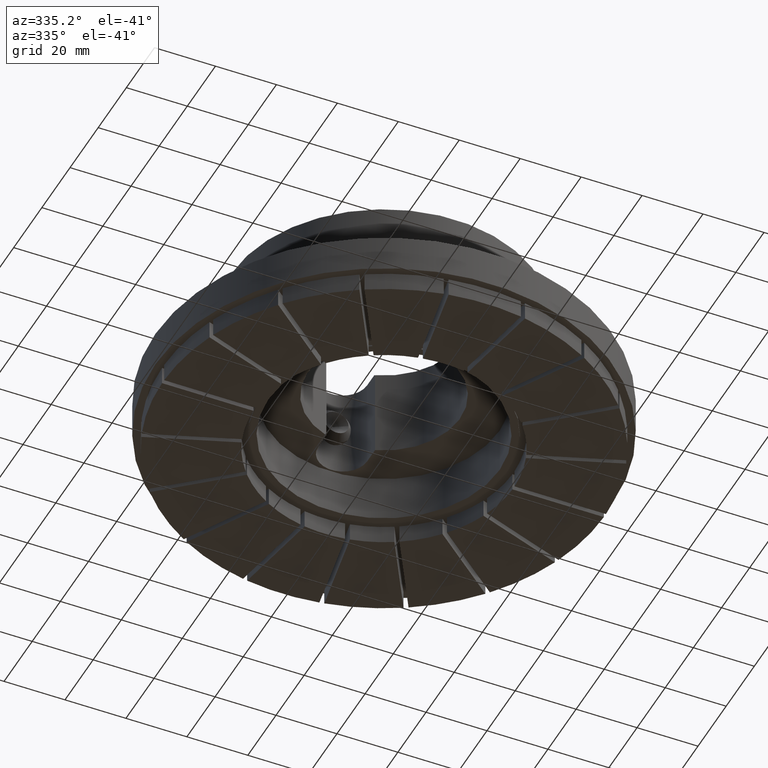
[diagram: clean part render]
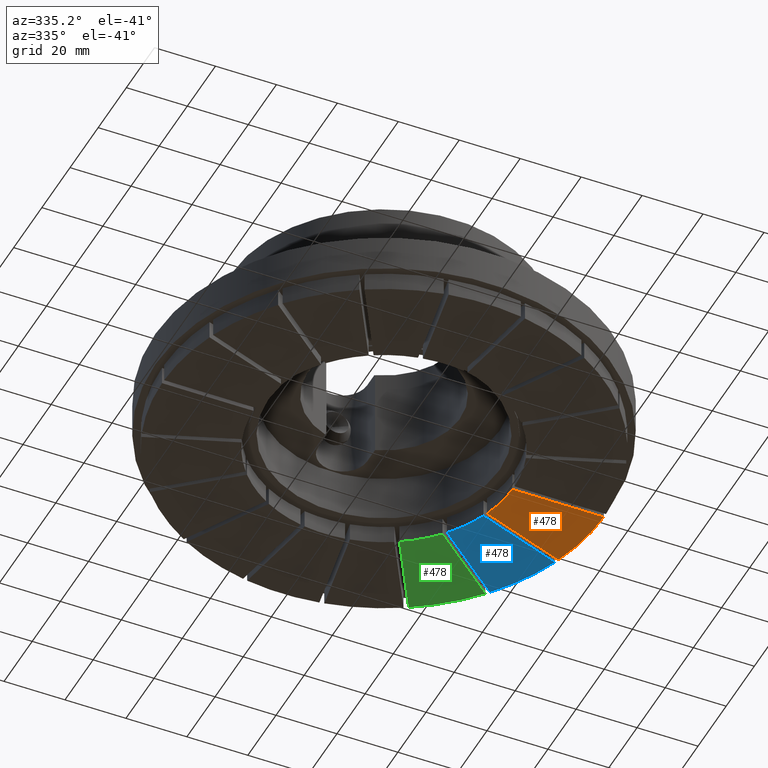
[diagram: same view with three faces highlighted in distinct colors, each labeled with its STEP entity id]
A machine part, auxiliary view with three faces highlighted in distinct colors.
Their STEP definitions:

[orange] entity #478 — the highlighted planar face has unit normal (0, 0, 1).
#478 = ADVANCED_FACE( '', ( #750 ), #751, .F. );
#750 = FACE_OUTER_BOUND( '', #1022, .T. );
#751 = PLANE( '', #1023 );
#1022 = EDGE_LOOP( '', ( #1898, #1899, #1900, #1901 ) );
#1023 = AXIS2_PLACEMENT_3D( '', #1902, #1903, #1904 );
#1898 = ORIENTED_EDGE( '', *, *, #2172, .F. );
#1899 = ORIENTED_EDGE( '', *, *, #2183, .F. );
#1900 = ORIENTED_EDGE( '', *, *, #2181, .F. );
#1901 = ORIENTED_EDGE( '', *, *, #2179, .F. );
#1902 = CARTESIAN_POINT( '', ( 1.38777878078145E-014, 1.08420217248550E-016, 0.000000000000000 ) );
#1903 = DIRECTION( '', ( 0.000000000000000, -0.000000000000000, 1.00000000000000 ) );
#1904 = DIRECTION( '', ( 0.999946490839491, 0.0103448275862069, 0.000000000000000 ) );
#2172 = EDGE_CURVE( '', #2633, #2634, #2635, .T. );
#2179 = EDGE_CURVE( '', #2634, #2646, #2647, .T. );
#2181 = EDGE_CURVE( '', #2646, #2649, #2650, .T. );
#2183 = EDGE_CURVE( '', #2649, #2633, #2652, .T. );
#2633 = VERTEX_POINT( '', #3466 );
#2634 = VERTEX_POINT( '', #3467 );
#2635 = LINE( '', #3468, #3469 );
#2646 = VERTEX_POINT( '', #3484 );
#2647 = CIRCLE( '', #3485, 72.5000000000000 );
#2649 = VERTEX_POINT( '', #3488 );
#2650 = LINE( '', #3489, #3490 );
#2652 = CIRCLE( '', #3493, 42.5000000000000 );
#3466 = CARTESIAN_POINT( '', ( 42.4933818376462, 0.750000000000040, 0.000000000000000 ) );
#3467 = CARTESIAN_POINT( '', ( 72.4961205858631, 0.750000000000000, 0.000000000000000 ) );
#3468 = CARTESIAN_POINT( '', ( 42.4933818376462, 0.750000000000000, 0.000000000000000 ) );
#3469 = VECTOR( '', #3934, 1000.00000000000 );
#3484 = CARTESIAN_POINT( '', ( 68.3805846576352, 24.0903640877424, 0.000000000000000 ) );
#3485 = AXIS2_PLACEMENT_3D( '', #3945, #3946, #3947 );
#3488 = CARTESIAN_POINT( '', ( 40.1872324525683, 13.8288230809147, 0.000000000000000 ) );
#3489 = CARTESIAN_POINT( '', ( 68.3805846576352, 24.0903640877424, 0.000000000000000 ) );
#3490 = VECTOR( '', #3949, 1000.00000000000 );
#3493 = AXIS2_PLACEMENT_3D( '', #3951, #3952, #3953 );
#3934 = DIRECTION( '', ( 1.00000000000000, 0.000000000000000, 0.000000000000000 ) );
#3945 = CARTESIAN_POINT( '', ( 1.38777878078145E-014, 1.08420217248550E-016, 0.000000000000000 ) );
#3946 = DIRECTION( '', ( 0.000000000000000, 0.000000000000000, 1.00000000000000 ) );
#3947 = DIRECTION( '', ( 1.00000000000000, 0.000000000000000, 0.000000000000000 ) );
#3949 = DIRECTION( '', ( -0.939692620785908, -0.342020143325669, -0.000000000000000 ) );
#3951 = CARTESIAN_POINT( '', ( 1.38777878078145E-014, 1.08420217248550E-016, 0.000000000000000 ) );
#3952 = DIRECTION( '', ( 0.000000000000000, 0.000000000000000, -1.00000000000000 ) );
#3953 = DIRECTION( '', ( 1.00000000000000, 0.000000000000000, 0.000000000000000 ) );

[blue] entity #478 — the highlighted planar face has unit normal (0, 0, 1).
#478 = ADVANCED_FACE( '', ( #750 ), #751, .F. );
#750 = FACE_OUTER_BOUND( '', #1022, .T. );
#751 = PLANE( '', #1023 );
#1022 = EDGE_LOOP( '', ( #1898, #1899, #1900, #1901 ) );
#1023 = AXIS2_PLACEMENT_3D( '', #1902, #1903, #1904 );
#1898 = ORIENTED_EDGE( '', *, *, #2172, .F. );
#1899 = ORIENTED_EDGE( '', *, *, #2183, .F. );
#1900 = ORIENTED_EDGE( '', *, *, #2181, .F. );
#1901 = ORIENTED_EDGE( '', *, *, #2179, .F. );
#1902 = CARTESIAN_POINT( '', ( 1.38777878078145E-014, 1.08420217248550E-016, 0.000000000000000 ) );
#1903 = DIRECTION( '', ( 0.000000000000000, -0.000000000000000, 1.00000000000000 ) );
#1904 = DIRECTION( '', ( 0.999946490839491, 0.0103448275862069, 0.000000000000000 ) );
#2172 = EDGE_CURVE( '', #2633, #2634, #2635, .T. );
#2179 = EDGE_CURVE( '', #2634, #2646, #2647, .T. );
#2181 = EDGE_CURVE( '', #2646, #2649, #2650, .T. );
#2183 = EDGE_CURVE( '', #2649, #2633, #2652, .T. );
#2633 = VERTEX_POINT( '', #3466 );
#2634 = VERTEX_POINT( '', #3467 );
#2635 = LINE( '', #3468, #3469 );
#2646 = VERTEX_POINT( '', #3484 );
#2647 = CIRCLE( '', #3485, 72.5000000000000 );
#2649 = VERTEX_POINT( '', #3488 );
#2650 = LINE( '', #3489, #3490 );
#2652 = CIRCLE( '', #3493, 42.5000000000000 );
#3466 = CARTESIAN_POINT( '', ( 42.4933818376462, 0.750000000000040, 0.000000000000000 ) );
#3467 = CARTESIAN_POINT( '', ( 72.4961205858631, 0.750000000000000, 0.000000000000000 ) );
#3468 = CARTESIAN_POINT( '', ( 42.4933818376462, 0.750000000000000, 0.000000000000000 ) );
#3469 = VECTOR( '', #3934, 1000.00000000000 );
#3484 = CARTESIAN_POINT( '', ( 68.3805846576352, 24.0903640877424, 0.000000000000000 ) );
#3485 = AXIS2_PLACEMENT_3D( '', #3945, #3946, #3947 );
#3488 = CARTESIAN_POINT( '', ( 40.1872324525683, 13.8288230809147, 0.000000000000000 ) );
#3489 = CARTESIAN_POINT( '', ( 68.3805846576352, 24.0903640877424, 0.000000000000000 ) );
#3490 = VECTOR( '', #3949, 1000.00000000000 );
#3493 = AXIS2_PLACEMENT_3D( '', #3951, #3952, #3953 );
#3934 = DIRECTION( '', ( 1.00000000000000, 0.000000000000000, 0.000000000000000 ) );
#3945 = CARTESIAN_POINT( '', ( 1.38777878078145E-014, 1.08420217248550E-016, 0.000000000000000 ) );
#3946 = DIRECTION( '', ( 0.000000000000000, 0.000000000000000, 1.00000000000000 ) );
#3947 = DIRECTION( '', ( 1.00000000000000, 0.000000000000000, 0.000000000000000 ) );
#3949 = DIRECTION( '', ( -0.939692620785908, -0.342020143325669, -0.000000000000000 ) );
#3951 = CARTESIAN_POINT( '', ( 1.38777878078145E-014, 1.08420217248550E-016, 0.000000000000000 ) );
#3952 = DIRECTION( '', ( 0.000000000000000, 0.000000000000000, -1.00000000000000 ) );
#3953 = DIRECTION( '', ( 1.00000000000000, 0.000000000000000, 0.000000000000000 ) );

[green] entity #478 — the highlighted planar face has unit normal (0, 0, 1).
#478 = ADVANCED_FACE( '', ( #750 ), #751, .F. );
#750 = FACE_OUTER_BOUND( '', #1022, .T. );
#751 = PLANE( '', #1023 );
#1022 = EDGE_LOOP( '', ( #1898, #1899, #1900, #1901 ) );
#1023 = AXIS2_PLACEMENT_3D( '', #1902, #1903, #1904 );
#1898 = ORIENTED_EDGE( '', *, *, #2172, .F. );
#1899 = ORIENTED_EDGE( '', *, *, #2183, .F. );
#1900 = ORIENTED_EDGE( '', *, *, #2181, .F. );
#1901 = ORIENTED_EDGE( '', *, *, #2179, .F. );
#1902 = CARTESIAN_POINT( '', ( 1.38777878078145E-014, 1.08420217248550E-016, 0.000000000000000 ) );
#1903 = DIRECTION( '', ( 0.000000000000000, -0.000000000000000, 1.00000000000000 ) );
#1904 = DIRECTION( '', ( 0.999946490839491, 0.0103448275862069, 0.000000000000000 ) );
#2172 = EDGE_CURVE( '', #2633, #2634, #2635, .T. );
#2179 = EDGE_CURVE( '', #2634, #2646, #2647, .T. );
#2181 = EDGE_CURVE( '', #2646, #2649, #2650, .T. );
#2183 = EDGE_CURVE( '', #2649, #2633, #2652, .T. );
#2633 = VERTEX_POINT( '', #3466 );
#2634 = VERTEX_POINT( '', #3467 );
#2635 = LINE( '', #3468, #3469 );
#2646 = VERTEX_POINT( '', #3484 );
#2647 = CIRCLE( '', #3485, 72.5000000000000 );
#2649 = VERTEX_POINT( '', #3488 );
#2650 = LINE( '', #3489, #3490 );
#2652 = CIRCLE( '', #3493, 42.5000000000000 );
#3466 = CARTESIAN_POINT( '', ( 42.4933818376462, 0.750000000000040, 0.000000000000000 ) );
#3467 = CARTESIAN_POINT( '', ( 72.4961205858631, 0.750000000000000, 0.000000000000000 ) );
#3468 = CARTESIAN_POINT( '', ( 42.4933818376462, 0.750000000000000, 0.000000000000000 ) );
#3469 = VECTOR( '', #3934, 1000.00000000000 );
#3484 = CARTESIAN_POINT( '', ( 68.3805846576352, 24.0903640877424, 0.000000000000000 ) );
#3485 = AXIS2_PLACEMENT_3D( '', #3945, #3946, #3947 );
#3488 = CARTESIAN_POINT( '', ( 40.1872324525683, 13.8288230809147, 0.000000000000000 ) );
#3489 = CARTESIAN_POINT( '', ( 68.3805846576352, 24.0903640877424, 0.000000000000000 ) );
#3490 = VECTOR( '', #3949, 1000.00000000000 );
#3493 = AXIS2_PLACEMENT_3D( '', #3951, #3952, #3953 );
#3934 = DIRECTION( '', ( 1.00000000000000, 0.000000000000000, 0.000000000000000 ) );
#3945 = CARTESIAN_POINT( '', ( 1.38777878078145E-014, 1.08420217248550E-016, 0.000000000000000 ) );
#3946 = DIRECTION( '', ( 0.000000000000000, 0.000000000000000, 1.00000000000000 ) );
#3947 = DIRECTION( '', ( 1.00000000000000, 0.000000000000000, 0.000000000000000 ) );
#3949 = DIRECTION( '', ( -0.939692620785908, -0.342020143325669, -0.000000000000000 ) );
#3951 = CARTESIAN_POINT( '', ( 1.38777878078145E-014, 1.08420217248550E-016, 0.000000000000000 ) );
#3952 = DIRECTION( '', ( 0.000000000000000, 0.000000000000000, -1.00000000000000 ) );
#3953 = DIRECTION( '', ( 1.00000000000000, 0.000000000000000, 0.000000000000000 ) );